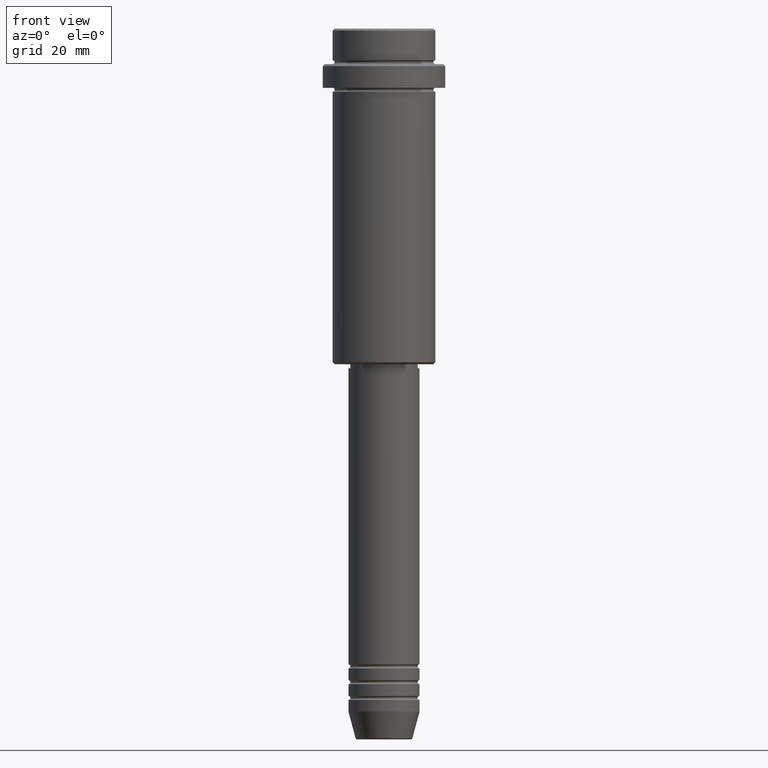
[diagram: clean part render]
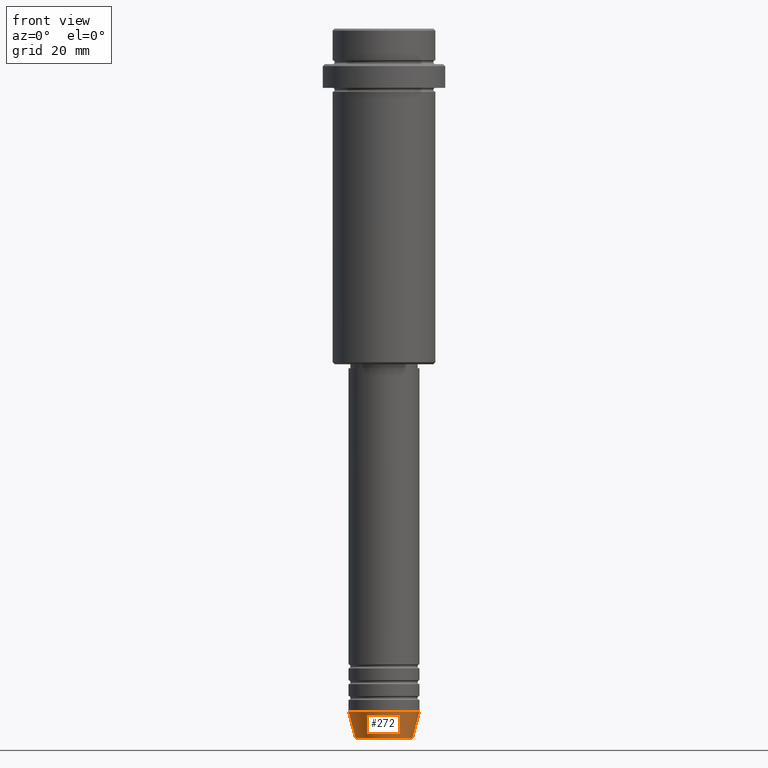
[diagram: same view with one face highlighted and labeled with its STEP entity id]
A machine part, front view. The second image highlights one B-rep face of the part: STEP entity #272.
In plain terms, the highlighted conical surface has half-angle 15 deg.
Its self-contained STEP definition (entity closure, byte-faithful):
#13 = CARTESIAN_POINT ( 'NONE',  ( 0.000000000000000000, 0.000000000000000000, -173.0000000000000000 ) ) ;
#19 = DIRECTION ( 'NONE',  ( -0.2588190451025213501, 3.169619151431772337E-17, 0.9659258262890680902 ) ) ;
#38 = DIRECTION ( 'NONE',  ( 1.000000000000000000, 0.000000000000000000, 0.000000000000000000 ) ) ;
#171 = EDGE_LOOP ( 'NONE', ( #374, #939, #1035, #242 ) ) ;
#179 = DIRECTION ( 'NONE',  ( -0.000000000000000000, -0.000000000000000000, 1.000000000000000000 ) ) ;
#187 = CONICAL_SURFACE ( 'NONE', #1206, 9.000000000000000000, 0.2617993877991500740 ) ;
#239 = EDGE_CURVE ( 'NONE', #436, #791, #996, .T. ) ;
#240 = CARTESIAN_POINT ( 'NONE',  ( -9.000000000000000000, 1.102182119232617714E-15, -173.0000000000000000 ) ) ;
#242 = ORIENTED_EDGE ( 'NONE', *, *, #1127, .F. ) ;
#272 = ADVANCED_FACE ( 'NONE', ( #1339 ), #187, .T. ) ;
#310 = CIRCLE ( 'NONE', #617, 9.000000000000000000 ) ;
#371 = DIRECTION ( 'NONE',  ( 1.000000000000000000, 0.000000000000000000, 0.000000000000000000 ) ) ;
#374 = ORIENTED_EDGE ( 'NONE', *, *, #239, .F. ) ;
#387 = DIRECTION ( 'NONE',  ( 0.2588190451025213501, 0.000000000000000000, 0.9659258262890680902 ) ) ;
#431 = CIRCLE ( 'NONE', #479, 7.223655072137188604 ) ;
#436 = VERTEX_POINT ( 'NONE', #437 ) ;
#437 = CARTESIAN_POINT ( 'NONE',  ( -7.223655072137189492, 9.934123627281765110E-16, -179.6294095225512706 ) ) ;
#446 = VERTEX_POINT ( 'NONE', #879 ) ;
#479 = AXIS2_PLACEMENT_3D ( 'NONE', #632, #831, #371 ) ;
#486 = CARTESIAN_POINT ( 'NONE',  ( 0.000000000000000000, 0.000000000000000000, -173.0000000000000000 ) ) ;
#502 = CARTESIAN_POINT ( 'NONE',  ( 9.000000000000000000, 0.000000000000000000, -173.0000000000000000 ) ) ;
#617 = AXIS2_PLACEMENT_3D ( 'NONE', #13, #1236, #38 ) ;
#632 = CARTESIAN_POINT ( 'NONE',  ( 0.000000000000000000, 0.000000000000000000, -179.6294095225512706 ) ) ;
#642 = EDGE_CURVE ( 'NONE', #436, #990, #431, .T. ) ;
#724 = EDGE_CURVE ( 'NONE', #990, #446, #1043, .T. ) ;
#726 = CARTESIAN_POINT ( 'NONE',  ( 7.223655072137188604, 0.000000000000000000, -179.6294095225512706 ) ) ;
#791 = VERTEX_POINT ( 'NONE', #1394 ) ;
#798 = VECTOR ( 'NONE', #387, 1000.000000000000000 ) ;
#801 = VECTOR ( 'NONE', #19, 1000.000000000000000 ) ;
#831 = DIRECTION ( 'NONE',  ( -0.000000000000000000, -0.000000000000000000, 1.000000000000000000 ) ) ;
#879 = CARTESIAN_POINT ( 'NONE',  ( 9.000000000000000000, 0.000000000000000000, -173.0000000000000000 ) ) ;
#939 = ORIENTED_EDGE ( 'NONE', *, *, #642, .T. ) ;
#990 = VERTEX_POINT ( 'NONE', #726 ) ;
#996 = LINE ( 'NONE', #240, #801 ) ;
#1032 = DIRECTION ( 'NONE',  ( 1.000000000000000000, 0.000000000000000000, 0.000000000000000000 ) ) ;
#1035 = ORIENTED_EDGE ( 'NONE', *, *, #724, .T. ) ;
#1043 = LINE ( 'NONE', #502, #798 ) ;
#1127 = EDGE_CURVE ( 'NONE', #791, #446, #310, .T. ) ;
#1206 = AXIS2_PLACEMENT_3D ( 'NONE', #486, #179, #1032 ) ;
#1236 = DIRECTION ( 'NONE',  ( -0.000000000000000000, -0.000000000000000000, 1.000000000000000000 ) ) ;
#1339 = FACE_OUTER_BOUND ( 'NONE', #171, .T. ) ;
#1394 = CARTESIAN_POINT ( 'NONE',  ( -9.000000000000000000, 1.102182119232617714E-15, -173.0000000000000000 ) ) ;